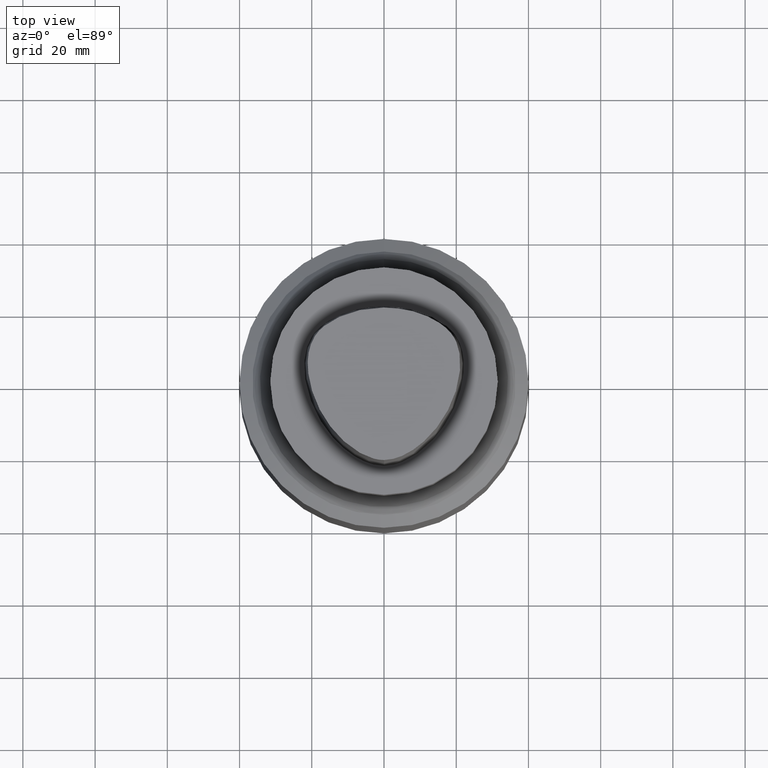
[diagram: clean part render]
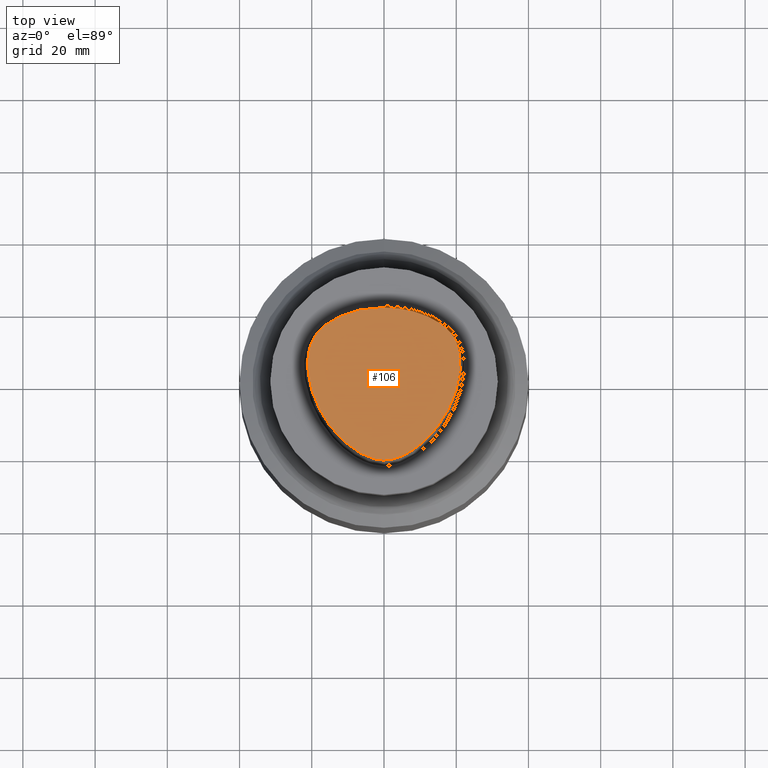
[diagram: same view with one face highlighted and labeled with its STEP entity id]
A machine part, top view. The second image highlights one B-rep face of the part: STEP entity #106.
In plain terms, the highlighted planar face has unit normal (-0, 0, 1).
Its self-contained STEP definition (entity closure, byte-faithful):
#61=EDGE_CURVE('Unnamed[1]',#151,#152,#153,.T.);
#70=EDGE_CURVE('Unnamed[1]',#152,#151,#165,.T.);
#106=ADVANCED_FACE('Unnamed[1]',(#216),#217,.T.);
#151=VERTEX_POINT('',#332);
#152=VERTEX_POINT('',#333);
#153=B_SPLINE_CURVE_WITH_KNOTS('',3,(#334,#335,#336,#337,#338,#339,#340,#341,#342,#343,#344,#345,#346,#347,#348,#349),.UNSPECIFIED.,.F.,.F.,(4,1,1,1,1,1,1,1,1,1,1,1,1,4),(6.61513393087476,6.99917207152274,7.48193246986995,7.96289324787093,8.45540287038584,9.10291653679981,9.67129810936083,10.1618749681153,10.6358867802489,11.1080734988593,11.6043706019633,12.09451993853,12.6985979284494,13.2302678617486),.UNSPECIFIED.);
#165=B_SPLINE_CURVE_WITH_KNOTS('',3,(#367,#368,#369,#370,#371,#372,#373,#374,#375,#376,#377,#378,#379,#380,#381,#382),.UNSPECIFIED.,.F.,.F.,(4,1,1,1,1,1,1,1,1,1,1,1,1,4),(0.0,0.447924670568964,0.9388024242536,1.50591409090711,2.07314340012323,2.72424957442464,3.2253501842849,3.80982102049476,4.34867996267067,4.85900173381144,5.37972031856977,6.03459825488646,6.61113557741484,6.61513393087395),.UNSPECIFIED.);
#216=FACE_OUTER_BOUND('',#480,.T.);
#217=PLANE('',#481);
#332=CARTESIAN_POINT('',(0.038736923393866,-22.5191997536361,38.0));
#333=CARTESIAN_POINT('',(-0.001218547003662,19.7276821925089,38.0));
#334=CARTESIAN_POINT('',(0.038736923394311,-22.519199753636,38.0));
#335=CARTESIAN_POINT('',(1.31742058183662,-22.512662269405,38.0));
#336=CARTESIAN_POINT('',(4.2093773447498,-21.9116226439989,38.0));
#337=CARTESIAN_POINT('',(8.20895504542113,-19.7798683845067,38.0));
#338=CARTESIAN_POINT('',(11.9784633234593,-16.681663904162,38.0));
#339=CARTESIAN_POINT('',(15.5308821579362,-12.5807487594113,38.0));
#340=CARTESIAN_POINT('',(18.4566248438667,-7.64932246015528,38.0));
#341=CARTESIAN_POINT('',(20.4036090752029,-2.27012499825289,38.0));
#342=CARTESIAN_POINT('',(21.2357187429189,2.79891401173156,38.0));
#343=CARTESIAN_POINT('',(21.0811206267748,7.62543090736657,38.0));
#344=CARTESIAN_POINT('',(19.3383577336563,12.2772250726194,38.0));
#345=CARTESIAN_POINT('',(15.5796322014404,15.5799672120682,38.0));
#346=CARTESIAN_POINT('',(10.8392956074438,17.9834601687347,38.0));
#347=CARTESIAN_POINT('',(5.56068045850571,19.4586143858472,38.0));
#348=CARTESIAN_POINT('',(1.77223893711014,19.6418877095654,38.0));
#349=CARTESIAN_POINT('',(-0.001218367817519,19.7276822012873,38.0));
#367=CARTESIAN_POINT('',(-0.001218547003662,19.7276821925089,38.0));
#368=CARTESIAN_POINT('',(-1.49408492138443,19.6585333605309,38.0));
#369=CARTESIAN_POINT('',(-4.62297391420352,19.513604770166,38.0));
#370=CARTESIAN_POINT('',(-9.56160616752212,18.4291575730197,38.0));
#371=CARTESIAN_POINT('',(-14.5427684976927,16.2697452580488,38.0));
#372=CARTESIAN_POINT('',(-19.4315563551602,12.5302108980807,38.0));
#373=CARTESIAN_POINT('',(-21.306358833612,6.76352894547076,38.0));
#374=CARTESIAN_POINT('',(-21.0724946936277,0.957075236984038,38.0));
#375=CARTESIAN_POINT('',(-19.7876470880144,-4.34628503581652,38.0));
#376=CARTESIAN_POINT('',(-17.5396999600095,-9.33314444653089,38.0));
#377=CARTESIAN_POINT('',(-14.645447733857,-13.7185760345629,38.0));
#378=CARTESIAN_POINT('',(-10.7996726536643,-17.856257282137,38.0));
#379=CARTESIAN_POINT('',(-6.00479510196376,-21.2687382067675,38.0));
#380=CARTESIAN_POINT('',(-1.90747171908525,-22.5250621415864,38.0));
#381=CARTESIAN_POINT('',(0.025424107066464,-22.5192678176378,38.0));
#382=CARTESIAN_POINT('',(0.038736923394311,-22.519199753636,38.0));
#480=EDGE_LOOP('',(#649,#650));
#481=AXIS2_PLACEMENT_3D('',#651,#652,#653);
#649=ORIENTED_EDGE('',*,*,#70,.T.);
#650=ORIENTED_EDGE('',*,*,#61,.T.);
#651=CARTESIAN_POINT('',(0.008647668684817,1.77491953635526,38.0));
#652=DIRECTION('',(-0.0,2.95577857036584E-049,1.0));
#653=DIRECTION('',(1.0,0.0,0.0));